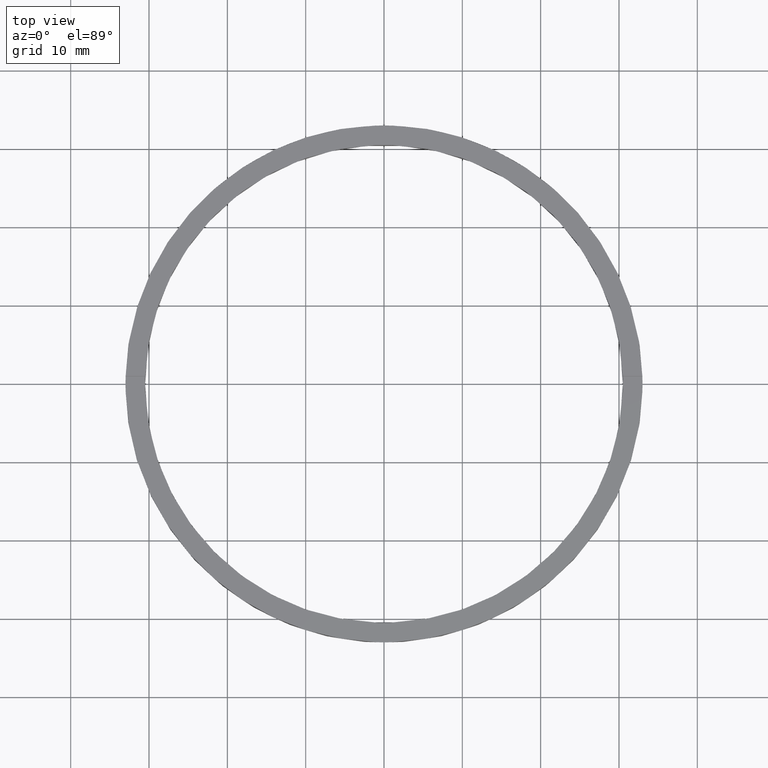
[diagram: clean part render]
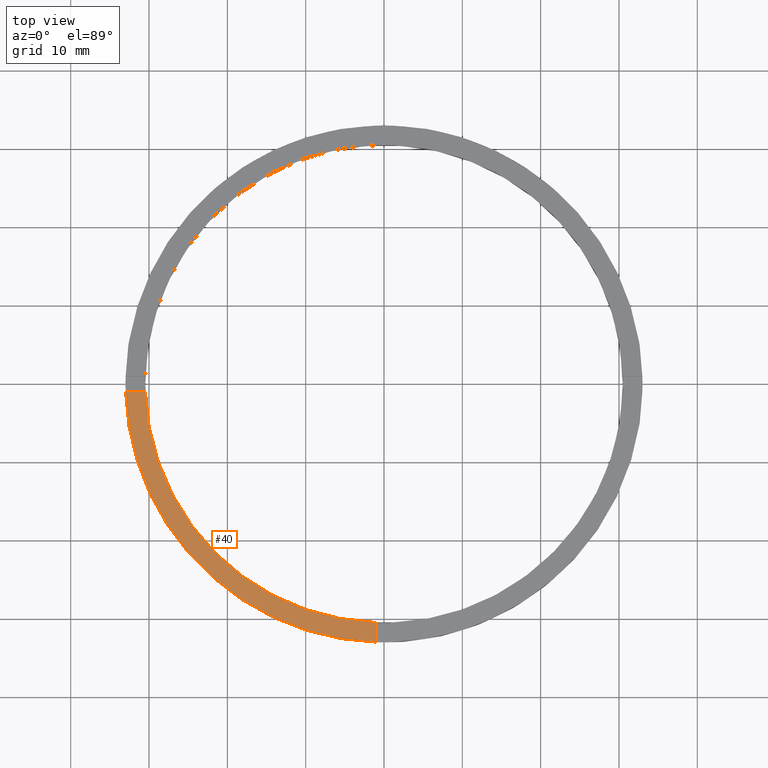
[diagram: same view with one face highlighted and labeled with its STEP entity id]
A machine part, top view. The second image highlights one B-rep face of the part: STEP entity #40.
In plain terms, the highlighted planar face has unit normal (0, 0, 1).
Its self-contained STEP definition (entity closure, byte-faithful):
#33 = DIRECTION ( 'NONE',  ( 1.000000000000000000, 0.000000000000000000, 0.000000000000000000 ) ) ;
#40 = ADVANCED_FACE ( 'NONE', ( #399 ), #255, .T. ) ;
#51 = CARTESIAN_POINT ( 'NONE',  ( 0.000000000000000000, 0.000000000000000000, 3.000000000000000000 ) ) ;
#56 = LINE ( 'NONE', #69, #584 ) ;
#69 = CARTESIAN_POINT ( 'NONE',  ( -1.000000000000162315, -23.00000000000018119, 3.000000000000000000 ) ) ;
#87 = VERTEX_POINT ( 'NONE', #721 ) ;
#90 = EDGE_LOOP ( 'NONE', ( #92, #600, #636, #614 ) ) ;
#92 = ORIENTED_EDGE ( 'NONE', *, *, #366, .F. ) ;
#195 = CARTESIAN_POINT ( 'NONE',  ( -1.000000000000160982, -32.98484500494128469, 3.000000000000000000 ) ) ;
#242 = CARTESIAN_POINT ( 'NONE',  ( -30.48360214935236101, -1.000000000000025535, 3.000000000000000000 ) ) ;
#250 = AXIS2_PLACEMENT_3D ( 'NONE', #309, #410, #575 ) ;
#255 = PLANE ( 'NONE',  #250 ) ;
#261 = DIRECTION ( 'NONE',  ( 1.000000000000000000, 0.000000000000000000, 0.000000000000000000 ) ) ;
#267 = VECTOR ( 'NONE', #435, 1000.000000000000000 ) ;
#289 = LINE ( 'NONE', #363, #267 ) ;
#309 = CARTESIAN_POINT ( 'NONE',  ( 0.000000000000000000, 0.000000000000000000, 3.000000000000000000 ) ) ;
#343 = VERTEX_POINT ( 'NONE', #195 ) ;
#347 = VERTEX_POINT ( 'NONE', #499 ) ;
#363 = CARTESIAN_POINT ( 'NONE',  ( -23.00000000000018474, -1.000000000000024203, 3.000000000000000000 ) ) ;
#366 = EDGE_CURVE ( 'NONE', #87, #343, #56, .T. ) ;
#399 = FACE_OUTER_BOUND ( 'NONE', #90, .T. ) ;
#410 = DIRECTION ( 'NONE',  ( 0.000000000000000000, 0.000000000000000000, 1.000000000000000000 ) ) ;
#435 = DIRECTION ( 'NONE',  ( 1.000000000000000000, 1.951563910473908228E-16, -0.000000000000000000 ) ) ;
#451 = DIRECTION ( 'NONE',  ( 1.301042606982605074E-16, -1.000000000000000000, 0.000000000000000000 ) ) ;
#457 = AXIS2_PLACEMENT_3D ( 'NONE', #51, #528, #33 ) ;
#499 = CARTESIAN_POINT ( 'NONE',  ( -32.98484500494128469, -1.000000000000026201, 3.000000000000000000 ) ) ;
#528 = DIRECTION ( 'NONE',  ( 0.000000000000000000, 0.000000000000000000, 1.000000000000000000 ) ) ;
#542 = EDGE_CURVE ( 'NONE', #347, #633, #289, .T. ) ;
#575 = DIRECTION ( 'NONE',  ( 1.000000000000000000, 0.000000000000000000, -0.000000000000000000 ) ) ;
#584 = VECTOR ( 'NONE', #451, 1000.000000000000000 ) ;
#589 = DIRECTION ( 'NONE',  ( 0.000000000000000000, 0.000000000000000000, 1.000000000000000000 ) ) ;
#600 = ORIENTED_EDGE ( 'NONE', *, *, #655, .F. ) ;
#614 = ORIENTED_EDGE ( 'NONE', *, *, #746, .T. ) ;
#633 = VERTEX_POINT ( 'NONE', #242 ) ;
#636 = ORIENTED_EDGE ( 'NONE', *, *, #542, .F. ) ;
#655 = EDGE_CURVE ( 'NONE', #633, #87, #689, .T. ) ;
#681 = CARTESIAN_POINT ( 'NONE',  ( 0.000000000000000000, 0.000000000000000000, 3.000000000000000000 ) ) ;
#683 = CIRCLE ( 'NONE', #457, 33.00000000000000000 ) ;
#689 = CIRCLE ( 'NONE', #751, 30.50000000000000000 ) ;
#721 = CARTESIAN_POINT ( 'NONE',  ( -1.000000000000161426, -30.48360214935235390, 3.000000000000000000 ) ) ;
#746 = EDGE_CURVE ( 'NONE', #347, #343, #683, .T. ) ;
#751 = AXIS2_PLACEMENT_3D ( 'NONE', #681, #589, #261 ) ;